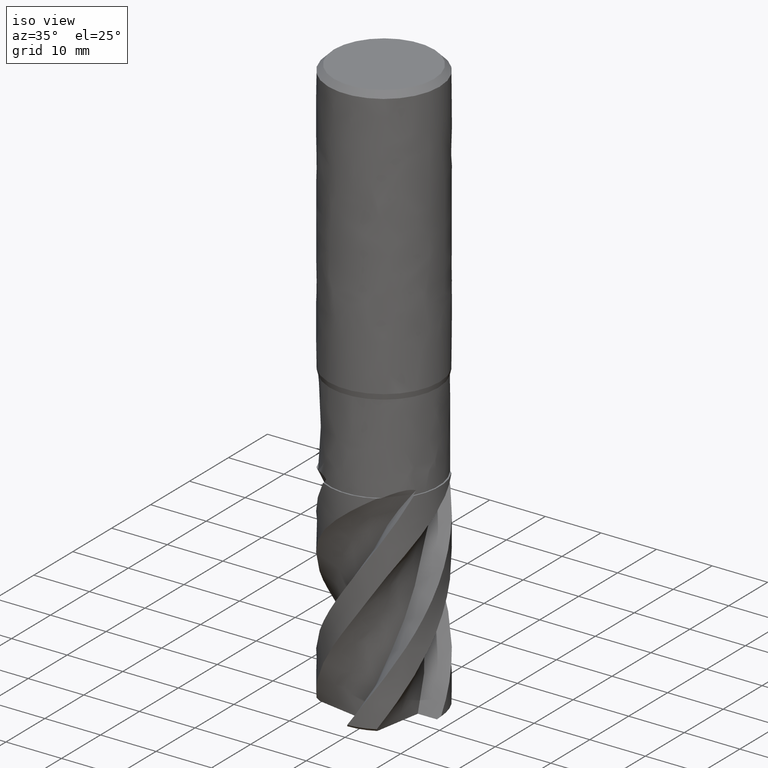
[diagram: clean part render]
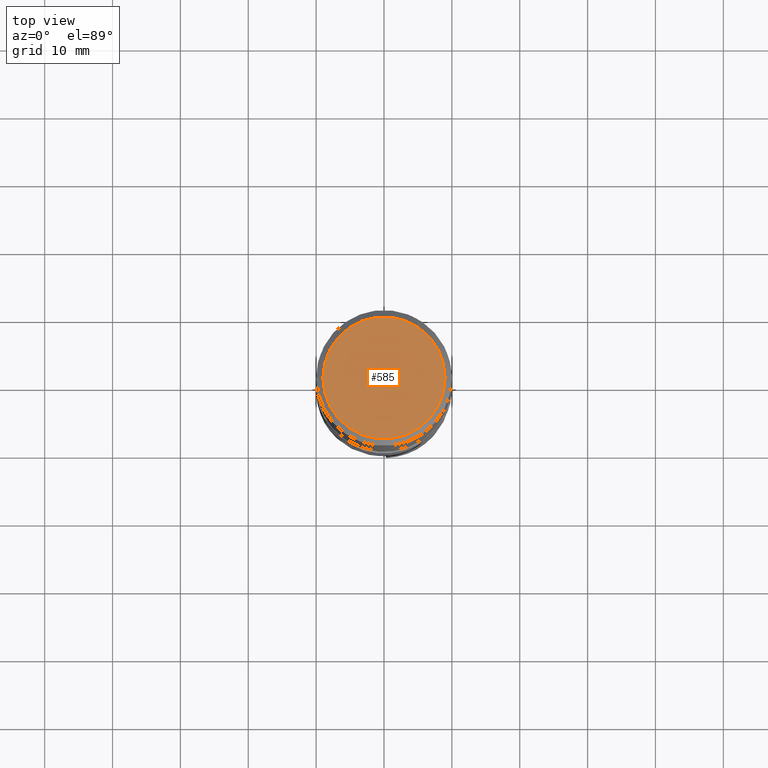
[diagram: tour spotlight — one face highlighted and labeled with its STEP entity id]
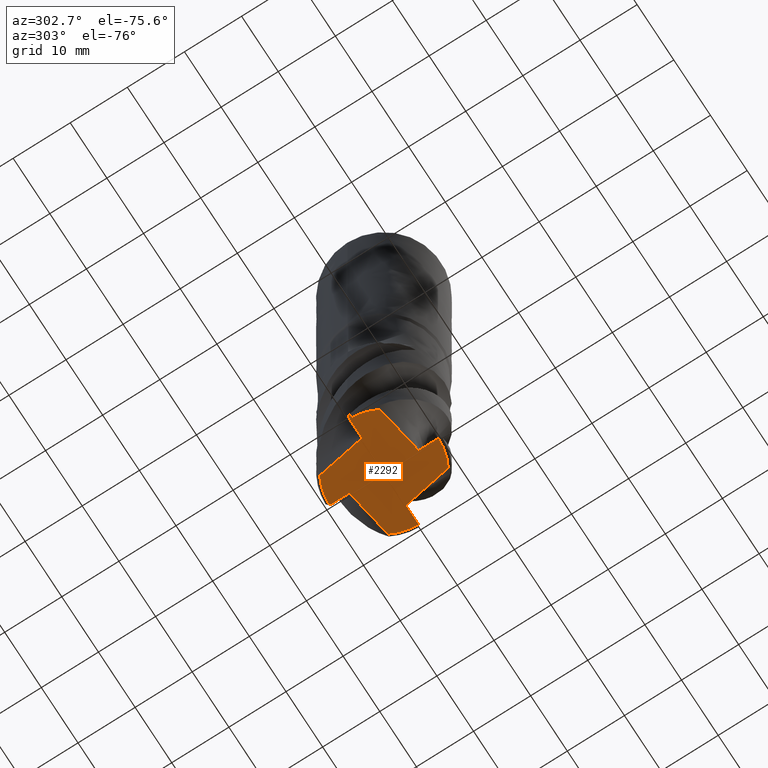
[diagram: tour spotlight — one face highlighted and labeled with its STEP entity id]
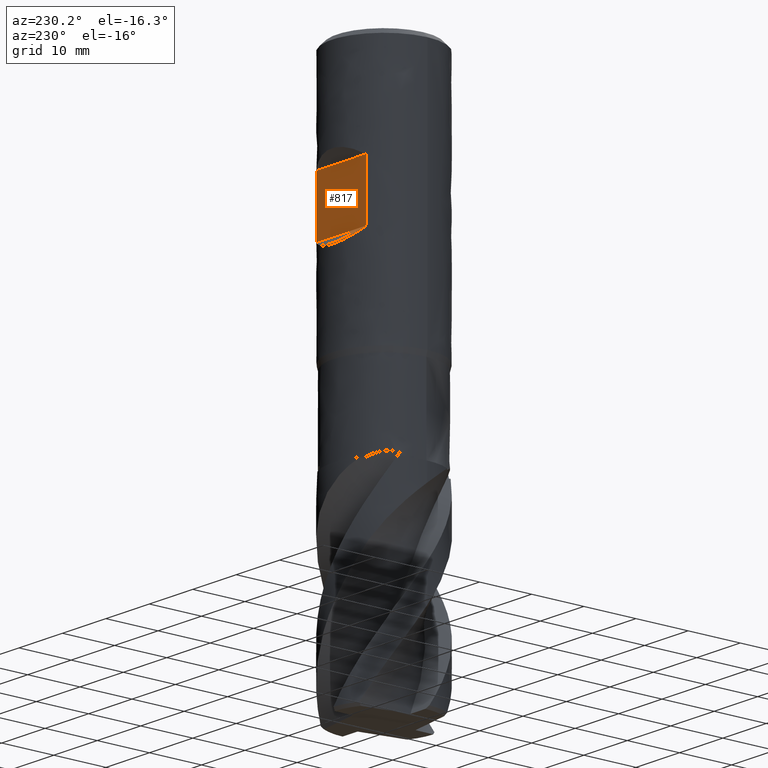
[diagram: tour spotlight — one face highlighted and labeled with its STEP entity id]
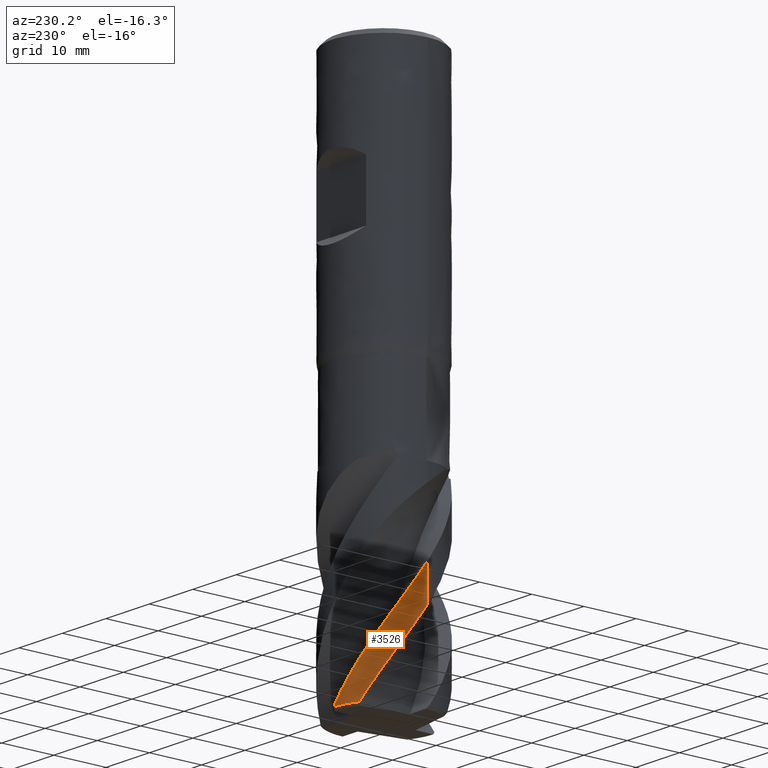
[diagram: tour spotlight — one face highlighted and labeled with its STEP entity id]
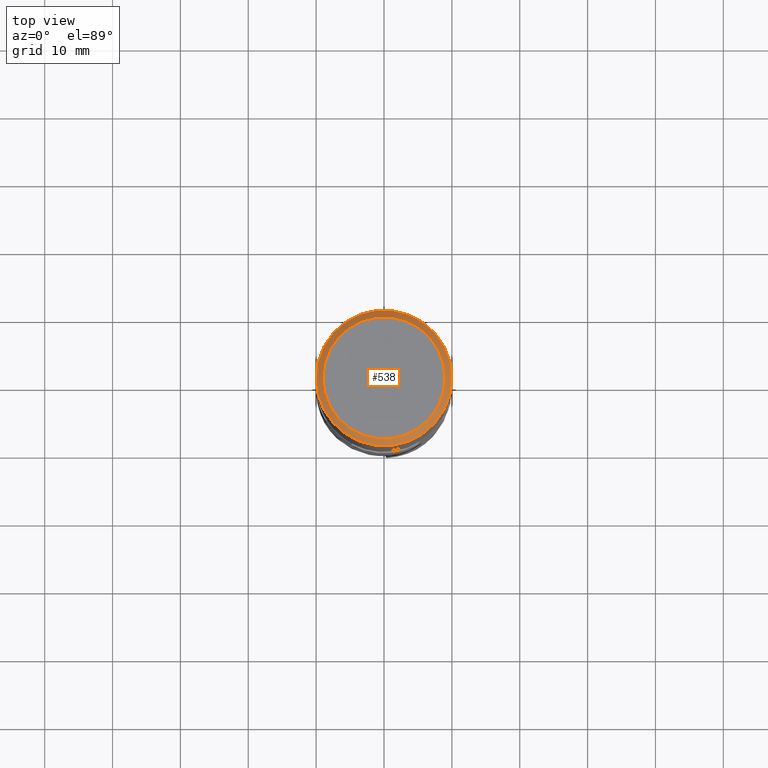
[diagram: tour spotlight — one face highlighted and labeled with its STEP entity id]
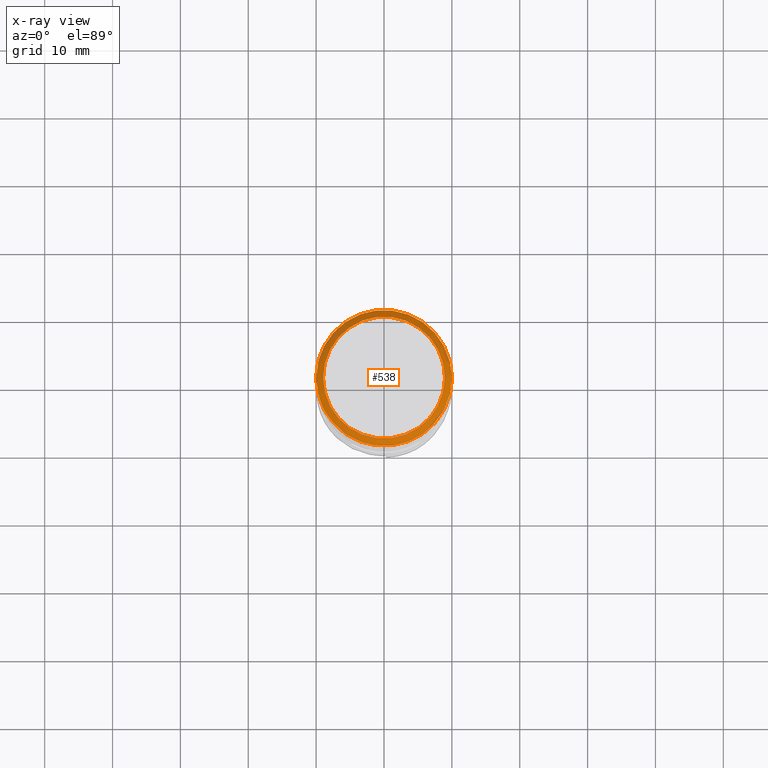
[diagram: x-ray of the same camera — body ghosted, this tour face saturated]
A machine part: a face-by-face anatomy tour. The part has 37 B-rep faces; the first image is the clean iso view, then the 5 largest visible faces are spotlighted one at a time (largest first), each with its STEP entity span.

Face 1 — top view, entity #585. In plain terms, the highlighted planar face has unit normal (0, -0, 1).
Definition (entity closure, byte-faithful):
#545 = VERTEX_POINT('', #546);
#546 = CARTESIAN_POINT('', (-9., 5.51091059616309E-16, 0.));
#552 = EDGE_CURVE('', #545, #545, #553, .T.);
#553 = CIRCLE('', #554, 9.);
#554 = AXIS2_PLACEMENT_3D('', #555, #556, #557);
#555 = CARTESIAN_POINT('', (-2.18952885050753E-47, 1.34069974920741E-63, 0.));
#556 = DIRECTION('', (3.74939945665464E-33, 6.12323399573677E-17, -1.));
#557 = DIRECTION('', (-1., 6.12323399573677E-17, 0.));
#585 = ADVANCED_FACE('', (#586), #589, .T.);
#586 = FACE_OUTER_BOUND('', #587, .T.);
#587 = EDGE_LOOP('', (#588));
#588 = ORIENTED_EDGE('', *, *, #552, .F.);
#589 = PLANE('', #590);
#590 = AXIS2_PLACEMENT_3D('', #591, #592, #593);
#591 = CARTESIAN_POINT('', (14.0007142674936, -14.0007142674936, -2.29641983139407E-14));
#592 = DIRECTION('', (7.89491928622333E-16, -8.50724268579701E-16, 1.));
#593 = DIRECTION('', (0., 1., 8.50724268579701E-16));

Face 2 — auxiliary view, entity #2292. In plain terms, the highlighted planar face has unit normal (0, 0, -1).
Definition (entity closure, byte-faithful):
#1301 = VERTEX_POINT('', #1302);
#1302 = CARTESIAN_POINT('', (4.62371289531529, -8.29887215600379, -104.));
#1312 = EDGE_CURVE('', #1313, #1301, #1315, .T.);
#1313 = VERTEX_POINT('', #1314);
#1314 = CARTESIAN_POINT('', (6.05980952317125, 0.0210061638817328, -104.));
#1315 = LINE('', #1316, #1317);
#1316 = CARTESIAN_POINT('', (6.05980952317125, 0.0210061638817328, -104.));
#1317 = VECTOR('', #1318, 8.44291115565244);
#1318 = DIRECTION('', (-1.43609662785598, -8.31987831988552, -1.4210854715202E-14));
#1416 = VERTEX_POINT('', #1417);
#1417 = CARTESIAN_POINT('', (0.0210061638817225, -6.05980952317124, -104.));
#1446 = EDGE_CURVE('', #1416, #1447, #1449, .T.);
#1447 = VERTEX_POINT('', #1448);
#1448 = CARTESIAN_POINT('', (0.0329312921690224, -9.4999429224599, -104.));
#1449 = LINE('', #1450, #1451);
#1450 = CARTESIAN_POINT('', (0.0210061638817225, -6.05980952317124, -104.));
#1451 = VECTOR('', #1452, 3.440154068292);
#1452 = DIRECTION('', (0.0119251282873042, -3.44013339928866, 1.4210854715202E-14));
#1898 = VERTEX_POINT('', #1899);
#1899 = CARTESIAN_POINT('', (-8.29887215600379, -4.62371289531529, -104.));
#1909 = EDGE_CURVE('', #1416, #1898, #1910, .T.);
#1910 = LINE('', #1911, #1912);
#1911 = CARTESIAN_POINT('', (0.0210061638817225, -6.05980952317124, -104.));
#1912 = VECTOR('', #1913, 8.44291115565243);
#1913 = DIRECTION('', (-8.31987831988551, 1.43609662785596, 0.));
#2269 = VERTEX_POINT('', #2270);
#2270 = CARTESIAN_POINT('', (-9.49994292245991, -0.0329312921690263, -104.));
#2277 = EDGE_CURVE('', #1898, #2269, #2278, .T.);
#2278 = CIRCLE('', #2279, 9.5);
#2279 = AXIS2_PLACEMENT_3D('', #2280, #2281, #2282);
#2280 = CARTESIAN_POINT('', (3.89937543492083E-31, 6.36816335556624E-15, -104.));
#2281 = DIRECTION('', (3.74939945665464E-33, 6.12323399573677E-17, -1.));
#2282 = DIRECTION('', (-1., 6.12323399573677E-17, 0.));
#2292 = ADVANCED_FACE('', (#2293), #2362, .T.);
#2293 = FACE_OUTER_BOUND('', #2294, .T.);
#2294 = EDGE_LOOP('', (#2295, #2303, #2311, #2320, #2328, #2336, #2345, #2351, #2352, #2359, #2360, #2361));
#2295 = ORIENTED_EDGE('', *, *, #2296, .F.);
#2296 = EDGE_CURVE('', #2297, #2269, #2299, .T.);
#2297 = VERTEX_POINT('', #2298);
#2298 = CARTESIAN_POINT('', (-6.05980952317125, -0.0210061638817195, -104.));
#2299 = LINE('', #2300, #2301);
#2300 = CARTESIAN_POINT('', (-6.05980952317125, -0.0210061638817195, -104.));
#2301 = VECTOR('', #2302, 3.44015406829201);
#2302 = DIRECTION('', (-3.44013339928866, -0.0119251282873012, 1.4210854715202E-14));
#2303 = ORIENTED_EDGE('', *, *, #2304, .T.);
#2304 = EDGE_CURVE('', #2297, #2305, #2307, .T.);
#2305 = VERTEX_POINT('', #2306);
#2306 = CARTESIAN_POINT('', (-4.62371289531528, 8.29887215600381, -104.));
#2307 = LINE('', #2308, #2309);
#2308 = CARTESIAN_POINT('', (-6.05980952317125, -0.0210061638817195, -104.));
#2309 = VECTOR('', #2310, 8.44291115565244);
#2310 = DIRECTION('', (1.43609662785596, 8.31987831988553, 0.));
#2311 = ORIENTED_EDGE('', *, *, #2312, .T.);
#2312 = EDGE_CURVE('', #2305, #2313, #2315, .T.);
#2313 = VERTEX_POINT('', #2314);
#2314 = CARTESIAN_POINT('', (-0.0329312921690198, 9.49994292245992, -104.));
#2315 = CIRCLE('', #2316, 9.5);
#2316 = AXIS2_PLACEMENT_3D('', #2317, #2318, #2319);
#2317 = CARTESIAN_POINT('', (3.89937543492083E-31, 6.36816335556624E-15, -104.));
#2318 = DIRECTION('', (3.74939945665464E-33, 6.12323399573677E-17, -1.));
#2319 = DIRECTION('', (-1., 6.12323399573677E-17, 0.));
#2320 = ORIENTED_EDGE('', *, *, #2321, .F.);
#2321 = EDGE_CURVE('', #2322, #2313, #2324, .T.);
#2322 = VERTEX_POINT('', #2323);
#2323 = CARTESIAN_POINT('', (-0.0210061638817211, 6.05980952317125, -104.));
#2324 = LINE('', #2325, #2326);
#2325 = CARTESIAN_POINT('', (-0.0210061638817211, 6.05980952317125, -104.));
#2326 = VECTOR('', #2327, 3.44015406829201);
#2327 = DIRECTION('', (-0.0119251282873047, 3.44013339928866, 0.));
#2328 = ORIENTED_EDGE('', *, *, #2329, .T.);
#2329 = EDGE_CURVE('', #2322, #2330, #2332, .T.);
#2330 = VERTEX_POINT('', #2331);
#2331 = CARTESIAN_POINT('', (8.29887215600379, 4.6237128953153, -104.));
#2332 = LINE('', #2333, #2334);
#2333 = CARTESIAN_POINT('', (-0.0210061638817211, 6.05980952317125, -104.));
#2334 = VECTOR('', #2335, 8.44291115565243);
#2335 = DIRECTION('', (8.31987831988551, -1.43609662785596, 0.));
#2336 = ORIENTED_EDGE('', *, *, #2337, .T.);
#2337 = EDGE_CURVE('', #2330, #2338, #2340, .T.);
#2338 = VERTEX_POINT('', #2339);
#2339 = CARTESIAN_POINT('', (9.49994292245991, 0.0329312921690402, -104.));
#2340 = CIRCLE('', #2341, 9.5);
#2341 = AXIS2_PLACEMENT_3D('', #2342, #2343, #2344);
#2342 = CARTESIAN_POINT('', (3.89937543492083E-31, 6.36816335556624E-15, -104.));
#2343 = DIRECTION('', (3.74939945665464E-33, 6.12323399573677E-17, -1.));
#2344 = DIRECTION('', (-1., 6.12323399573677E-17, 0.));
#2345 = ORIENTED_EDGE('', *, *, #2346, .F.);
#2346 = EDGE_CURVE('', #1313, #2338, #2347, .T.);
#2347 = LINE('', #2348, #2349);
#2348 = CARTESIAN_POINT('', (6.05980952317125, 0.0210061638817328, -104.));
#2349 = VECTOR('', #2350, 3.440154068292);
#2350 = DIRECTION('', (3.44013339928866, 0.0119251282872958, -1.4210854715202E-14));
#2351 = ORIENTED_EDGE('', *, *, #1312, .T.);
#2352 = ORIENTED_EDGE('', *, *, #2353, .T.);
#2353 = EDGE_CURVE('', #1301, #1447, #2354, .T.);
#2354 = CIRCLE('', #2355, 9.5);
#2355 = AXIS2_PLACEMENT_3D('', #2356, #2357, #2358);
#2356 = CARTESIAN_POINT('', (3.89937543492083E-31, 6.36816335556624E-15, -104.));
#2357 = DIRECTION('', (3.74939945665464E-33, 6.12323399573677E-17, -1.));
#2358 = DIRECTION('', (-1., 6.12323399573677E-17, 0.));
#2359 = ORIENTED_EDGE('', *, *, #1446, .F.);
#2360 = ORIENTED_EDGE('', *, *, #1909, .T.);
#2361 = ORIENTED_EDGE('', *, *, #2277, .T.);
#2362 = PLANE('', #2363);
#2363 = AXIS2_PLACEMENT_3D('', #2364, #2365, #2366);
#2364 = CARTESIAN_POINT('', (14.7785317267988, -14.7785317267988, -104.));
#2365 = DIRECTION('', (0., 0., -1.));
#2366 = DIRECTION('', (-1., 0., 0.));

Face 3 — auxiliary view, entity #817. In plain terms, the highlighted planar face has unit normal (0, 1, 0).
Definition (entity closure, byte-faithful):
#610 = VERTEX_POINT('', #611);
#611 = CARTESIAN_POINT('', (-5.72363520850167, 8.2, -19.5));
#612 = VERTEX_POINT('', #613);
#613 = CARTESIAN_POINT('', (5.72363520850167, 8.2, -19.5));
#701 = EDGE_CURVE('', #610, #702, #704, .T.);
#702 = VERTEX_POINT('', #703);
#703 = CARTESIAN_POINT('', (-5.72363520850167, 8.2, -30.5));
#704 = LINE('', #705, #706);
#705 = CARTESIAN_POINT('', (-5.72363520850167, 8.2, -19.5));
#706 = VECTOR('', #707, 11.);
#707 = DIRECTION('', (-8.88178419700125E-16, 1.77635683940025E-15, -11.));
#710 = VERTEX_POINT('', #711);
#711 = CARTESIAN_POINT('', (5.72363520850168, 8.2, -30.5));
#793 = EDGE_CURVE('', #612, #710, #794, .T.);
#794 = LINE('', #795, #796);
#795 = CARTESIAN_POINT('', (5.72363520850167, 8.2, -19.5));
#796 = VECTOR('', #797, 11.);
#797 = DIRECTION('', (8.88178419700125E-16, 0., -11.));
#817 = ADVANCED_FACE('', (#818), #834, .T.);
#818 = FACE_OUTER_BOUND('', #819, .T.);
#819 = EDGE_LOOP('', (#820, #821, #827, #828));
#820 = ORIENTED_EDGE('', *, *, #793, .T.);
#821 = ORIENTED_EDGE('', *, *, #822, .T.);
#822 = EDGE_CURVE('', #710, #702, #823, .T.);
#823 = LINE('', #824, #825);
#824 = CARTESIAN_POINT('', (5.72363520850167, 8.2, -30.5));
#825 = VECTOR('', #826, 11.4472704170034);
#826 = DIRECTION('', (-11.4472704170034, 0., 0.));
#827 = ORIENTED_EDGE('', *, *, #701, .F.);
#828 = ORIENTED_EDGE('', *, *, #829, .F.);
#829 = EDGE_CURVE('', #612, #610, #830, .T.);
#830 = LINE('', #831, #832);
#831 = CARTESIAN_POINT('', (5.72363520850167, 8.2, -19.5));
#832 = VECTOR('', #833, 11.4472704170033);
#833 = DIRECTION('', (-11.4472704170033, 1.77635683940025E-15, 0.));
#834 = PLANE('', #835);
#835 = AXIS2_PLACEMENT_3D('', #836, #837, #838);
#836 = CARTESIAN_POINT('', (10., 8.2, -30.5));
#837 = DIRECTION('', (1.77635683940025E-16, 1., 0.));
#838 = DIRECTION('', (-1., 1.77635683940025E-16, 0.));

Face 4 — auxiliary view, entity #3526. In plain terms, the highlighted face is a freeform B-spline surface patch.
Definition (entity closure, byte-faithful):
#2373 = VERTEX_POINT('', #2374);
#2374 = CARTESIAN_POINT('', (-10., 6.00827424516588E-15, -88.1225647974432));
#2510 = EDGE_CURVE('', #2511, #2373, #2513, .T.);
#2511 = VERTEX_POINT('', #2512);
#2512 = CARTESIAN_POINT('', (-4.82102434027678, 8.76114857255936, -103.5));
#2513 = B_SPLINE_CURVE_WITH_KNOTS('', 3, (#2514, #2515, #2516, #2517, #2518, #2519, #2520, #2521, #2522, #2523, #2524, #2525, #2526, #2527, #2528, #2529, #2530, #2531, #2532, #2533, #2534, #2535, #2536, #2537, #2538, #2539, #2540, #2541, #2542, #2543, #2544, #2545, #2546, #2547, #2548, #2549, #2550, #2551, #2552, #2553, #2554, #2555, #2556, #2557, #2558, #2559, #2560, #2561, #2562, #2563, #2564, #2565, #2566, #2567, #2568), .UNSPECIFIED., .F., .U., (4, 3, 3, 3, 3, 3, 3, 3, 3, 3, 3, 3, 3, 3, 3, 3, 3, 3, 4), (0., 1.49754865878035, 2.9946564324197, 4.49132272139649, 5.48887938148266, 6.48630614610458, 7.48360218909771, 8.48076755739883, 9.47780094344114, 10.4747017808829, 11.4714686570907, 12.4681005682271, 13.4645954044112, 14.4609512740092, 15.4571669964957, 16.4532380941348, 17.4491618672605, 18.4449482064508, 18.7199054820332), .UNSPECIFIED.);
#2514 = CARTESIAN_POINT('', (-4.82102434027678, 8.76114857255936, -103.5));
#2515 = CARTESIAN_POINT('', (-5.06933176543661, 8.62451167721936, -103.089077458178));
#2516 = CARTESIAN_POINT('', (-5.31197264230087, 8.47722758047885, -102.678094176002));
#2517 = CARTESIAN_POINT('', (-5.54794170834748, 8.31987636932056, -102.267311082203));
#2518 = CARTESIAN_POINT('', (-5.78384130402706, 8.162571483075, -101.856648924816));
#2519 = CARTESIAN_POINT('', (-6.01320851960839, 7.99511345603138, -101.445946114455));
#2520 = CARTESIAN_POINT('', (-6.23505221071146, 7.81819185807705, -101.035433046596));
#2521 = CARTESIAN_POINT('', (-6.45683048195042, 7.64132243283422, -100.625041035635));
#2522 = CARTESIAN_POINT('', (-6.67121654320605, 7.45489464995636, -100.214595849154));
#2523 = CARTESIAN_POINT('', (-6.87729953648056, 7.25966604504122, -99.8043452068072));
#2524 = CARTESIAN_POINT('', (-7.01465778660325, 7.12954245202198, -99.5309053200457));
#2525 = CARTESIAN_POINT('', (-7.14837211475212, 6.99547065944867, -99.2574610161365));
#2526 = CARTESIAN_POINT('', (-7.27818676127803, 6.85769622161533, -98.9840836728247));
#2527 = CARTESIAN_POINT('', (-7.40798450416884, 6.71993972389034, -98.7107419269665));
#2528 = CARTESIAN_POINT('', (-7.53391871224152, 6.57844423262472, -98.4373970073934));
#2529 = CARTESIAN_POINT('', (-7.65574710421175, 6.4334700027554, -98.1641199824946));
#2530 = CARTESIAN_POINT('', (-7.77755952949009, 6.28851477304542, -97.890878772975));
#2531 = CARTESIAN_POINT('', (-7.89529770376579, 6.14004547585188, -97.6176324699006));
#2532 = CARTESIAN_POINT('', (-8.00873560252409, 5.98833483105807, -97.3444534671684));
#2533 = CARTESIAN_POINT('', (-8.12215863762923, 5.83664406475662, -97.0713102588047));
#2534 = CARTESIAN_POINT('', (-8.23131311459079, 5.68167180659221, -96.7981638231249));
#2535 = CARTESIAN_POINT('', (-8.33598712083889, 5.52370516240758, -96.525085121118));
#2536 = CARTESIAN_POINT('', (-8.44064727270314, 5.36575942628413, -96.2520425631098));
#2537 = CARTESIAN_POINT('', (-8.54085446400764, 5.20478046763779, -95.9789945717452));
#2538 = CARTESIAN_POINT('', (-8.63641514457152, 5.04106471398808, -95.7060144446873));
#2539 = CARTESIAN_POINT('', (-8.7319631210127, 4.87737072520035, -95.4330706084241));
#2540 = CARTESIAN_POINT('', (-8.82289134904552, 4.71089676339514, -95.160123534287));
#2541 = CARTESIAN_POINT('', (-8.90902105913758, 4.54195373906903, -94.8872437015907));
#2542 = CARTESIAN_POINT('', (-8.99513919531797, 4.37303341691664, -94.6144005378566));
#2543 = CARTESIAN_POINT('', (-9.07648190042256, 4.2016021699631, -94.3415512685048));
#2544 = CARTESIAN_POINT('', (-9.15289089379604, 4.02797570576904, -94.0687705557064));
#2545 = CARTESIAN_POINT('', (-9.22928954117439, 3.8543727510923, -93.7960267781927));
#2546 = CARTESIAN_POINT('', (-9.30077608163203, 3.67852883038716, -93.5232799886486));
#2547 = CARTESIAN_POINT('', (-9.3672078875395, 3.50077368471855, -93.2506010002422));
#2548 = CARTESIAN_POINT('', (-9.43363055653642, 3.32304298717151, -92.9779595156111));
#2549 = CARTESIAN_POINT('', (-9.4950170498378, 3.14335580073912, -92.7053129350069));
#2550 = CARTESIAN_POINT('', (-9.55124483625152, 2.96204694054278, -92.4327343514784));
#2551 = CARTESIAN_POINT('', (-9.60746478139679, 2.78076336484607, -92.1601937805054));
#2552 = CARTESIAN_POINT('', (-9.65854222083171, 2.59781054301859, -91.887649085124));
#2553 = CARTESIAN_POINT('', (-9.70437237413134, 2.41353616591853, -91.6151691209638));
#2554 = CARTESIAN_POINT('', (-9.75019608097564, 2.22928770879592, -91.3427274837519));
#2555 = CARTESIAN_POINT('', (-9.79078614235026, 2.04367043289176, -91.0702775416892));
#2556 = CARTESIAN_POINT('', (-9.8260608138677, 1.85702150826909, -90.797899810892));
#2557 = CARTESIAN_POINT('', (-9.86133036441197, 1.67039968025977, -90.5255616223213));
#2558 = CARTESIAN_POINT('', (-9.891295225092, 1.48269698485618, -90.2532232687063));
#2559 = CARTESIAN_POINT('', (-9.91589020080265, 1.2942648591484, -89.980958401325));
#2560 = CARTESIAN_POINT('', (-9.94048153877817, 1.10586060361103, -89.7087338034478));
#2561 = CARTESIAN_POINT('', (-9.95971051028876, 0.916678274275317, -89.4365093701405));
#2562 = CARTESIAN_POINT('', (-9.97353155049018, 0.727095874955741, -89.164342836905));
#2563 = CARTESIAN_POINT('', (-9.98735068343726, 0.537539637332394, -88.8922138616823));
#2564 = CARTESIAN_POINT('', (-9.99576716040001, 0.347529924403596, -88.6200724487907));
#2565 = CARTESIAN_POINT('', (-9.99876034984673, 0.157453060732581, -88.347972207102));
#2566 = CARTESIAN_POINT('', (-9.99958683157597, 0.104968893668471, -88.2728396829896));
#2567 = CARTESIAN_POINT('', (-10., 0.0524794242053771, -88.1977051799218));
#2568 = CARTESIAN_POINT('', (-10., 6.22446415835949E-15, -88.1225647974432));
#2698 = VERTEX_POINT('', #2699);
#2699 = CARTESIAN_POINT('', (-0.381212165986009, 9.99273122246888, -103.5));
#2706 = EDGE_CURVE('', #2698, #2707, #2709, .T.);
#2707 = VERTEX_POINT('', #2708);
#2708 = CARTESIAN_POINT('', (-10., 5.59612192885848E-15, -81.3916066698532));
#2709 = B_SPLINE_CURVE_WITH_KNOTS('', 3, (#2710, #2711, #2712, #2713, #2714, #2715, #2716, #2717, #2718, #2719, #2720, #2721, #2722, #2723, #2724, #2725, #2726, #2727, #2728, #2729, #2730, #2731, #2732, #2733, #2734, #2735, #2736, #2737, #2738, #2739, #2740, #2741, #2742, #2743, #2744, #2745, #2746, #2747, #2748, #2749, #2750, #2751, #2752, #2753, #2754, #2755, #2756, #2757, #2758, #2759, #2760, #2761, #2762, #2763, #2764, #2765, #2766, #2767, #2768, #2769, #2770, #2771, #2772, #2773, #2774, #2775, #2776, #2777, #2778, #2779, #2780, #2781, #2782, #2783, #2784, #2785, #2786, #2787, #2788, #2789, #2790, #2791, #2792, #2793, #2794, #2795, #2796, #2797), .UNSPECIFIED., .F., .U., (4, 3, 3, 3, 3, 3, 3, 3, 3, 3, 3, 3, 3, 3, 3, 3, 3, 3, 3, 3, 3, 3, 3, 3, 3, 3, 3, 3, 3, 4), (0., 1.5001938970399, 2.99987437498658, 4.49905475742756, 5.49770750414471, 6.4962207461298, 7.49459598662726, 8.49283549884519, 9.49094023268368, 10.4889117743659, 11.4867509465895, 12.4844588771655, 13.4820357447393, 14.4794818466203, 15.4767982398034, 16.4739827422442, 17.4710358254384, 18.1358123858624, 18.5790458597468, 19.5757821239086, 20.2404083912892, 21.2369224862458, 22.2332867542758, 23.2295110322367, 24.2256323112435, 25.221568793695, 25.8857991145401, 26.3287939679017, 26.7718309210119, 26.9001188818415), .UNSPECIFIED.);
#2710 = CARTESIAN_POINT('', (-0.381212165986009, 9.99273122246888, -103.5));
#2711 = CARTESIAN_POINT('', (-0.665914972821509, 9.98187011040254, -103.08903651677));
#2712 = CARTESIAN_POINT('', (-0.95023579431625, 9.95882652936518, -102.677950220319));
#2713 = CARTESIAN_POINT('', (-1.23297221649103, 9.92369787495386, -102.266987047104));
#2714 = CARTESIAN_POINT('', (-1.5156118763221, 9.88858124280308, -101.856164519934));
#2715 = CARTESIAN_POINT('', (-1.79683375773519, 9.8413671124223, -101.445220699274));
#2716 = CARTESIAN_POINT('', (-2.07544469071454, 9.78225584084704, -101.034397976449));
#2717 = CARTESIAN_POINT('', (-2.35396271585287, 9.72316428099149, -100.62371224987));
#2718 = CARTESIAN_POINT('', (-2.63003691110683, 9.6521484777307, -100.212905107744));
#2719 = CARTESIAN_POINT('', (-2.90249814518237, 9.56950910534148, -99.8022197307876));
#2720 = CARTESIAN_POINT('', (-3.08399342284899, 9.51446033523344, -99.5286488619733));
#2721 = CARTESIAN_POINT('', (-3.26394558711792, 9.45423873593149, -99.2550419580644));
#2722 = CARTESIAN_POINT('', (-3.44201644613316, 9.38895749189169, -98.9814710321316));
#2723 = CARTESIAN_POINT('', (-3.62006242990767, 9.32368536718039, -98.7079383221241));
#2724 = CARTESIAN_POINT('', (-3.79627433708063, 9.25333788134957, -98.4343697463547));
#2725 = CARTESIAN_POINT('', (-3.97032067908968, 9.17804737976401, -98.1608369745505));
#2726 = CARTESIAN_POINT('', (-4.14434296668152, 9.10276728385039, -97.8873420068813));
#2727 = CARTESIAN_POINT('', (-4.31624591259249, 9.02252581558252, -97.6138110159751));
#2728 = CARTESIAN_POINT('', (-4.48570680129824, 8.93747360794911, -97.3403160874379));
#2729 = CARTESIAN_POINT('', (-4.65514465193781, 8.85243296309223, -97.0668583403077));
#2730 = CARTESIAN_POINT('', (-4.8221854301996, 8.76256062864427, -96.7933647961833));
#2731 = CARTESIAN_POINT('', (-4.98651504249609, 8.66802559588747, -96.5199070442787));
#2732 = CARTESIAN_POINT('', (-5.15082246765356, 8.57350332687961, -96.2464862135661));
#2733 = CARTESIAN_POINT('', (-5.31246257889582, 8.47429482428781, -95.9730294587141));
#2734 = CARTESIAN_POINT('', (-5.47113194119558, 8.37058631650314, -95.6996086861888));
#2735 = CARTESIAN_POINT('', (-5.62978012985114, 8.26689164810757, -95.4262244003177));
#2736 = CARTESIAN_POINT('', (-5.78549979636939, 8.15867108426633, -95.1528042599496));
#2737 = CARTESIAN_POINT('', (-5.93799834491189, 8.04612799151391, -94.8794198332813));
#2738 = CARTESIAN_POINT('', (-6.09047666627411, 7.93359982630964, -94.606071667916));
#2739 = CARTESIAN_POINT('', (-6.23977477843775, 7.8167207317995, -94.3326876077699));
#2740 = CARTESIAN_POINT('', (-6.3856126130944, 7.69570994486472, -94.0593395487201));
#2741 = CARTESIAN_POINT('', (-6.53143126630553, 7.57471507397685, -93.7860274420067));
#2742 = CARTESIAN_POINT('', (-6.67382860271251, 7.44955801467694, -93.5126795460522));
#2743 = CARTESIAN_POINT('', (-6.81253725263978, 7.32047376755052, -93.2393674283905));
#2744 = CARTESIAN_POINT('', (-6.95122768123042, 7.19140647745976, -92.9660912141285));
#2745 = CARTESIAN_POINT('', (-7.08626682744029, 7.05837912382124, -92.6927792524691));
#2746 = CARTESIAN_POINT('', (-7.21740116601181, 6.92164145335854, -92.4195030472129));
#2747 = CARTESIAN_POINT('', (-7.34851831505819, 6.78492170692436, -92.1462626639103));
#2748 = CARTESIAN_POINT('', (-7.47576587394978, 6.64445698266514, -91.8729862856165));
#2749 = CARTESIAN_POINT('', (-7.59890550808494, 6.50051037067063, -91.5997459037057));
#2750 = CARTESIAN_POINT('', (-7.72202912904248, 6.35658247760997, -91.3265410541952));
#2751 = CARTESIAN_POINT('', (-7.84107843747768, 6.20913551709409, -91.0533009823612));
#2752 = CARTESIAN_POINT('', (-7.95582953207272, 6.05844670328951, -90.7800966231023));
#2753 = CARTESIAN_POINT('', (-8.0705654513361, 5.9077778174232, -90.5069283939281));
#2754 = CARTESIAN_POINT('', (-8.1810341492072, 5.7538286575421, -90.2337241786196));
#2755 = CARTESIAN_POINT('', (-8.28702686353158, 5.59689072281263, -89.9605532524203));
#2756 = CARTESIAN_POINT('', (-8.39300560904413, 5.43997347098097, -89.6874183274999));
#2757 = CARTESIAN_POINT('', (-8.49453711294139, 5.28002782108506, -89.4142447421441));
#2758 = CARTESIAN_POINT('', (-8.59143559714706, 5.11734641978383, -89.1411098833958));
#2759 = CARTESIAN_POINT('', (-8.65604182737323, 5.00887999585429, -88.9589995675149));
#2760 = CARTESIAN_POINT('', (-8.71859845683831, 4.89918178971352, -88.7768800913627));
#2761 = CARTESIAN_POINT('', (-8.77905539893495, 4.78833857433152, -88.5947761731993));
#2762 = CARTESIAN_POINT('', (-8.81936449233745, 4.71443491055169, -88.4733601109301));
#2763 = CARTESIAN_POINT('', (-8.85874347881303, 4.6400163252994, -88.3519440302106));
#2764 = CARTESIAN_POINT('', (-8.89717599190994, 4.56511329202041, -88.2305318716323));
#2765 = CARTESIAN_POINT('', (-8.98360240549022, 4.39667256277994, -87.9575021739777));
#2766 = CARTESIAN_POINT('', (-9.06525110959404, 4.22576031910595, -87.684432004459));
#2767 = CARTESIAN_POINT('', (-9.14196207948799, 4.05271875871047, -87.4113769449808));
#2768 = CARTESIAN_POINT('', (-9.19311314865336, 3.93733420762855, -87.2293031392054));
#2769 = CARTESIAN_POINT('', (-9.2420779037201, 3.82098477926709, -87.0472109123808));
#2770 = CARTESIAN_POINT('', (-9.28882250992174, 3.70375166272946, -86.8651333590343));
#2771 = CARTESIAN_POINT('', (-9.35890950652317, 3.52797700746966, -86.5921335436644));
#2772 = CARTESIAN_POINT('', (-9.42402080062988, 3.35017183783186, -86.3191108523517));
#2773 = CARTESIAN_POINT('', (-9.48402907192757, 3.1706769880946, -86.0461302266472));
#2774 = CARTESIAN_POINT('', (-9.54402832091951, 2.99120912559396, -85.7731906438626));
#2775 = CARTESIAN_POINT('', (-9.5989411219246, 2.81000604379962, -85.5002210868297));
#2776 = CARTESIAN_POINT('', (-9.64865770208627, 2.62743307202511, -85.2272741853356));
#2777 = CARTESIAN_POINT('', (-9.69836729702404, 2.44488575191611, -84.9543656331248));
#2778 = CARTESIAN_POINT('', (-9.7428971125946, 2.26091792894371, -84.6814109802502));
#2779 = CARTESIAN_POINT('', (-9.78217068622415, 2.0758460120098, -84.4085014389102));
#2780 = CARTESIAN_POINT('', (-9.8214401993855, 1.89079322953616, -84.1356201135031));
#2781 = CARTESIAN_POINT('', (-9.8554653315118, 1.70458498029374, -83.8627148261836));
#2782 = CARTESIAN_POINT('', (-9.88418146629069, 1.51754958450639, -83.5898705683236));
#2783 = CARTESIAN_POINT('', (-9.91289227376367, 1.33054888680007, -83.3170769274719));
#2784 = CARTESIAN_POINT('', (-9.93629917091784, 1.14268725194751, -83.0442624804047));
#2785 = CARTESIAN_POINT('', (-9.95435118366563, 0.954406890301337, -82.7714354799966));
#2786 = CARTESIAN_POINT('', (-9.96639080108165, 0.828835102111362, -82.5894761189235));
#2787 = CARTESIAN_POINT('', (-9.97605127959485, 0.70305899591647, -82.4074847189199));
#2788 = CARTESIAN_POINT('', (-9.98332757143546, 0.577209322011063, -82.2254645260461));
#2789 = CARTESIAN_POINT('', (-9.98818034574551, 0.493276451005715, -82.1040698740398));
#2790 = CARTESIAN_POINT('', (-9.99197336499975, 0.409309333992039, -81.9826519122623));
#2791 = CARTESIAN_POINT('', (-9.99470775244356, 0.325295163266467, -81.861247299368));
#2792 = CARTESIAN_POINT('', (-9.99744239974824, 0.241273008304872, -81.7398311488595));
#2793 = CARTESIAN_POINT('', (-9.99911819092171, 0.157198593194562, -81.618422668708));
#2794 = CARTESIAN_POINT('', (-9.99973294812989, 0.0730819135323501, -81.4970427333779));
#2795 = CARTESIAN_POINT('', (-9.99991096025301, 0.0487246737358302, -81.4618953618554));
#2796 = CARTESIAN_POINT('', (-10., 0.0243638200817204, -81.426749931153));
#2797 = CARTESIAN_POINT('', (-10., 5.88495338760862E-15, -81.3916066698532));
#3511 = EDGE_CURVE('', #2511, #2698, #3512, .T.);
#3512 = CIRCLE('', #3513, 10.);
#3513 = AXIS2_PLACEMENT_3D('', #3514, #3515, #3516);
#3514 = CARTESIAN_POINT('', (3.88062843763756E-31, 6.33754718558755E-15, -103.5));
#3515 = DIRECTION('', (3.74939945665464E-33, 6.12323399573677E-17, -1.));
#3516 = DIRECTION('', (-1., 6.12323399573677E-17, 0.));
#3526 = ADVANCED_FACE('', (#3527), #3538, .T.);
#3527 = FACE_OUTER_BOUND('', #3528, .T.);
#3528 = EDGE_LOOP('', (#3529, #3530, #3536, #3537));
#3529 = ORIENTED_EDGE('', *, *, #2510, .T.);
#3530 = ORIENTED_EDGE('', *, *, #3531, .F.);
#3531 = EDGE_CURVE('', #2707, #2373, #3532, .T.);
#3532 = LINE('', #3533, #3534);
#3533 = CARTESIAN_POINT('', (-10., 5.59612192885848E-15, -81.3916066698532));
#3534 = VECTOR('', #3535, 6.73095812758997);
#3535 = DIRECTION('', (0., 4.12152316307396E-16, -6.73095812758997));
#3536 = ORIENTED_EDGE('', *, *, #2706, .F.);
#3537 = ORIENTED_EDGE('', *, *, #3511, .F.);
#3538 = (
   BOUNDED_SURFACE ()
   B_SPLINE_SURFACE (2, 1, ((#3539, #3540), (#3541, #3542), (#3543, #3544)), .UNSPECIFIED., .F., .F., .U.)
   B_SPLINE_SURFACE_WITH_KNOTS ((3, 3), (2, 2), (0., 15.2877082555197), (0.410442844529419, 1.), .UNSPECIFIED.)
   GEOMETRIC_REPRESENTATION_ITEM ()
   RATIONAL_B_SPLINE_SURFACE (((1., 1.), (0.714942923989609, 0.71494292398961), (0.984747014876685, 0.984747014876685)))
   REPRESENTATION_ITEM ('')
   SURFACE ()
);
#3539 = CARTESIAN_POINT('', (-10., 5.59612192885848E-15, -81.3916066698532));
#3540 = CARTESIAN_POINT('', (-10., 6.94987058516123E-15, -103.5));
#3541 = CARTESIAN_POINT('', (-10., 9.62578460269795, -81.3916066698532));
#3542 = CARTESIAN_POINT('', (-10., 9.62578460269795, -103.5));
#3543 = CARTESIAN_POINT('', (-0.38121216598601, 9.99273122246888, -81.3916066698532));
#3544 = CARTESIAN_POINT('', (-0.38121216598601, 9.99273122246888, -103.5));

Face 5 — top view, entity #538. An x-ray twin of the same camera follows (body ghosted, this face saturated) — the face is partly hidden behind the body. In plain terms, the highlighted face is a freeform B-spline surface patch.
Definition (entity closure, byte-faithful):
#538 = ADVANCED_FACE('', (#539), #566, .T.);
#539 = FACE_OUTER_BOUND('', #540, .T.);
#540 = EDGE_LOOP('', (#541, #551, #558, #559));
#541 = ORIENTED_EDGE('', *, *, #542, .T.);
#542 = EDGE_CURVE('', #543, #545, #547, .T.);
#543 = VERTEX_POINT('', #544);
#544 = CARTESIAN_POINT('', (-10., 6.73555739531045E-16, -1.));
#545 = VERTEX_POINT('', #546);
#546 = CARTESIAN_POINT('', (-9., 5.51091059616309E-16, 0.));
#547 = LINE('', #548, #549);
#548 = CARTESIAN_POINT('', (-10., 6.73555739531044E-16, -1.));
#549 = VECTOR('', #550, 1.4142135623731);
#550 = DIRECTION('', (1., -1.22464679914736E-16, 1.));
#551 = ORIENTED_EDGE('', *, *, #552, .T.);
#552 = EDGE_CURVE('', #545, #545, #553, .T.);
#553 = CIRCLE('', #554, 9.);
#554 = AXIS2_PLACEMENT_3D('', #555, #556, #557);
#555 = CARTESIAN_POINT('', (-2.18952885050753E-47, 1.34069974920741E-63, 0.));
#556 = DIRECTION('', (3.74939945665464E-33, 6.12323399573677E-17, -1.));
#557 = DIRECTION('', (-1., 6.12323399573677E-17, 0.));
#558 = ORIENTED_EDGE('', *, *, #542, .F.);
#559 = ORIENTED_EDGE('', *, *, #560, .F.);
#560 = EDGE_CURVE('', #543, #543, #561, .T.);
#561 = CIRCLE('', #562, 10.);
#562 = AXIS2_PLACEMENT_3D('', #563, #564, #565);
#563 = CARTESIAN_POINT('', (3.74939945665462E-33, 6.1232339957368E-17, -1.));
#564 = DIRECTION('', (3.74939945665464E-33, 6.12323399573677E-17, -1.));
#565 = DIRECTION('', (-1., 6.12323399573677E-17, 0.));
#566 = (
   BOUNDED_SURFACE ()
   B_SPLINE_SURFACE (1, 2, ((#567, #568, #569, #570, #571, #572, #573, #574, #575), (#576, #577, #578, #579, #580, #581, #582, #583, #584)), .UNSPECIFIED., .F., .T., .U.)
   B_SPLINE_SURFACE_WITH_KNOTS ((2, 2), (3, 2, 2, 2, 3), (0., 1.), (0., 0.25, 0.5, 0.75, 1.), .UNSPECIFIED.)
   GEOMETRIC_REPRESENTATION_ITEM ()
   RATIONAL_B_SPLINE_SURFACE (((1., 0.707106781186548, 1., 0.707106781186548, 1., 0.707106781186548, 1., 0.707106781186548, 1.), (1., 0.707106781186548, 1., 0.707106781186548, 1., 0.707106781186548, 1., 0.707106781186548, 1.)))
   REPRESENTATION_ITEM ('')
   SURFACE ()
);
#567 = CARTESIAN_POINT('', (-10., 6.73555739531044E-16, -1.));
#568 = CARTESIAN_POINT('', (-10., 10., -0.999999999999999));
#569 = CARTESIAN_POINT('', (0., 10., -0.999999999999999));
#570 = CARTESIAN_POINT('', (10., 10., -0.999999999999999));
#571 = CARTESIAN_POINT('', (10., 6.73555739531044E-16, -1.));
#572 = CARTESIAN_POINT('', (10., -10., -1.));
#573 = CARTESIAN_POINT('', (1.22464679914735E-15, -10., -1.));
#574 = CARTESIAN_POINT('', (-10., -10., -1.));
#575 = CARTESIAN_POINT('', (-10., 6.73555739531044E-16, -1.));
#576 = CARTESIAN_POINT('', (-9., 5.51091059616309E-16, 0.));
#577 = CARTESIAN_POINT('', (-9., 9., 5.51091059616309E-16));
#578 = CARTESIAN_POINT('', (0., 9., 5.51091059616309E-16));
#579 = CARTESIAN_POINT('', (9., 9., 5.51091059616309E-16));
#580 = CARTESIAN_POINT('', (9., 5.51091059616309E-16, 6.74891902197836E-32));
#581 = CARTESIAN_POINT('', (9., -9., -5.51091059616309E-16));
#582 = CARTESIAN_POINT('', (1.10218211923262E-15, -9., -5.51091059616309E-16));
#583 = CARTESIAN_POINT('', (-9., -9., -5.51091059616309E-16));
#584 = CARTESIAN_POINT('', (-9., 5.51091059616309E-16, 0.));